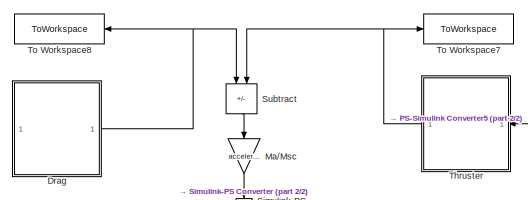
[diagram: root canvas - part 1/2, top left region]
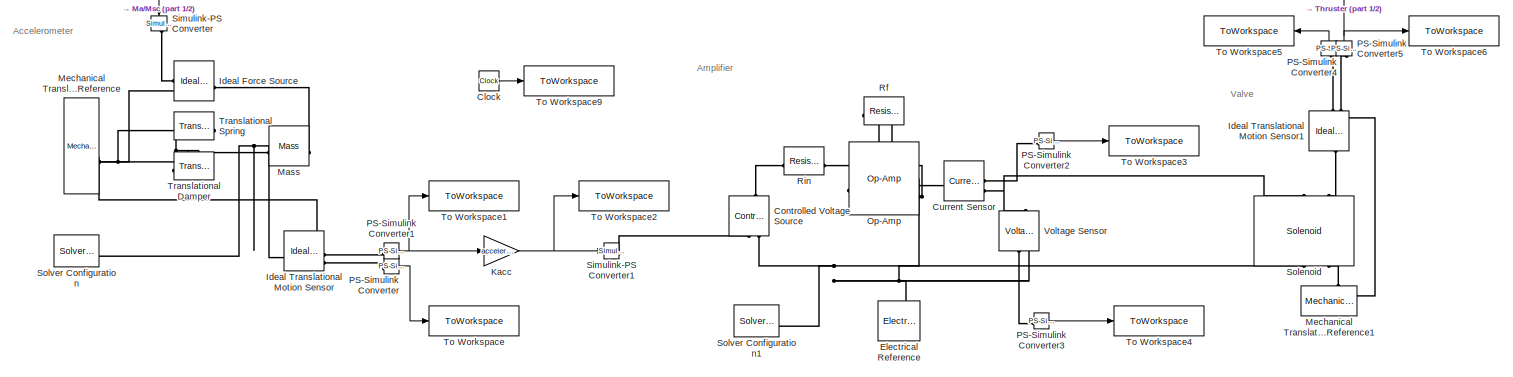
[diagram: root canvas - part 2/2, full width, bottom band]
MODEL slx_295a52b76f93
KIND model
CONFIG AbsTol = 1e-9
CONFIG EnableMultiTasking = off
CONFIG FixedStep = auto
CONFIG MaxStep = auto
CONFIG MinStep = auto
CONFIG RelTol = 1e-9
CONFIG SampleTimeConstraint = Unconstrained
CONFIG SolverName = ode15s
CONFIG StartTime = 0.0
CONFIG StopTime = Period
BLOCK [Clock] Clock
BLOCK [Reference] Controlled Voltage Source  REF=fl_lib/Electrical/Electrical Sources/Controlled Voltage
Source
  NameLocation = right
  SourceBlock = fl_lib/Electrical/Electrical Sources/Controlled Voltage\nSource
  SourceType = Controlled Voltage\nSource
BLOCK [Reference] Current Sensor  REF=fl_lib/Electrical/Electrical Sensors/Current Sensor
  SourceBlock = fl_lib/Electrical/Electrical Sensors/Current Sensor
  SourceType = Current Sensor
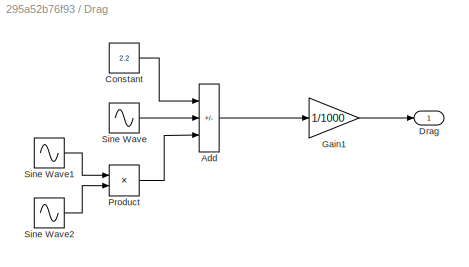
BLOCK [SubSystem] Drag
BLOCK [Sum] Drag/Add
  IconShape = rectangular
  Inputs = +-+
BLOCK [Constant] Drag/Constant
  Value = 2.2
BLOCK [Outport] Drag/Drag
BLOCK [Gain] Drag/Gain1
  Gain = 1/1000
BLOCK [Product] Drag/Product
BLOCK [Sin] Drag/Sine Wave
  Frequency = drag.omegaS
  Phase = pi/2
  SampleTime = 0
BLOCK [Sin] Drag/Sine Wave1
  Amplitude = 1.2
  Frequency = drag.omegaO
  SampleTime = 0
BLOCK [Sin] Drag/Sine Wave2
  Frequency = drag.omegaO
  Phase = pi/2
  SampleTime = 0
BLOCK [Reference] Electrical Reference  REF=fl_lib/Electrical/Electrical Elements/Electrical Reference
  NameLocation = right
  SourceBlock = fl_lib/Electrical/Electrical Elements/Electrical Reference
  SourceType = Electrical Reference
BLOCK [Reference] Ideal Force Source  REF=fl_lib/Mechanical/Mechanical Sources/Ideal Force Source
  SourceBlock = fl_lib/Mechanical/Mechanical Sources/Ideal Force Source
  SourceType = Ideal Force Source
BLOCK [Reference] Ideal Translational Motion Sensor  REF=fl_lib/Mechanical/Mechanical Sensors/Ideal Translational
Motion Sensor
  SourceBlock = fl_lib/Mechanical/Mechanical Sensors/Ideal Translational\nMotion Sensor
  SourceType = Ideal Translational\nMotion Sensor
BLOCK [Reference] Ideal Translational Motion Sensor1  REF=fl_lib/Mechanical/Mechanical Sensors/Ideal Translational
Motion Sensor
  NameLocation = right
  SourceBlock = fl_lib/Mechanical/Mechanical Sensors/Ideal Translational\nMotion Sensor
  SourceType = Ideal Translational\nMotion Sensor
BLOCK [Gain] Kacc
  Gain = accelerometer.Kacc
BLOCK [Gain] Ma//Msc
  Gain = accelerometer.Ma/accelerometer.Msc
  NameLocation = left
BLOCK [Reference] Mass  REF=fl_lib/Mechanical/Translational
Elements/Mass
  SourceBlock = fl_lib/Mechanical/Translational\nElements/Mass
  SourceType = Mass
BLOCK [Reference] Mechanical Translational Reference  REF=fl_lib/Mechanical/Translational
Elements/Mechanical
Translational
Reference
  SourceBlock = fl_lib/Mechanical/Translational\nElements/Mechanical\nTranslational\nReference
  SourceType = Mechanical\nTranslational\nReference
BLOCK [Reference] Mechanical Translational Reference1  REF=fl_lib/Mechanical/Translational
Elements/Mechanical
Translational
Reference
  NameLocation = right
  SourceBlock = fl_lib/Mechanical/Translational\nElements/Mechanical\nTranslational\nReference
  SourceType = Mechanical\nTranslational\nReference
BLOCK [Reference] Op-Amp  REF=fl_lib/Electrical/Electrical Elements/Op-Amp
  SourceBlock = fl_lib/Electrical/Electrical Elements/Op-Amp
  SourceType = Op-Amp
BLOCK [Reference] PS-Simulink Converter  REF=nesl_utility/PS-Simulink
Converter
  SourceBlock = nesl_utility/PS-Simulink\nConverter
  SourceType = PS-Simulink\nConverter
BLOCK [Reference] PS-Simulink Converter1  REF=nesl_utility/PS-Simulink
Converter
  SourceBlock = nesl_utility/PS-Simulink\nConverter
  SourceType = PS-Simulink\nConverter
BLOCK [Reference] PS-Simulink Converter2  REF=nesl_utility/PS-Simulink
Converter
  SourceBlock = nesl_utility/PS-Simulink\nConverter
  SourceType = PS-Simulink\nConverter
BLOCK [Reference] PS-Simulink Converter3  REF=nesl_utility/PS-Simulink
Converter
  SourceBlock = nesl_utility/PS-Simulink\nConverter
  SourceType = PS-Simulink\nConverter
BLOCK [Reference] PS-Simulink Converter4  REF=nesl_utility/PS-Simulink
Converter
  NameLocation = right
  SourceBlock = nesl_utility/PS-Simulink\nConverter
  SourceType = PS-Simulink\nConverter
BLOCK [Reference] PS-Simulink Converter5  REF=nesl_utility/PS-Simulink
Converter
  NameLocation = right
  SourceBlock = nesl_utility/PS-Simulink\nConverter
  SourceType = PS-Simulink\nConverter
BLOCK [Reference] Rf  REF=fl_lib/Electrical/Electrical Elements/Resistor
  NameLocation = top
  SourceBlock = fl_lib/Electrical/Electrical Elements/Resistor
  SourceType = Resistor
BLOCK [Reference] Rin  REF=fl_lib/Electrical/Electrical Elements/Resistor
  SourceBlock = fl_lib/Electrical/Electrical Elements/Resistor
  SourceType = Resistor
BLOCK [Reference] Simulink-PS Converter  REF=nesl_utility/Simulink-PS
Converter
  NameLocation = left
  SourceBlock = nesl_utility/Simulink-PS\nConverter
  SourceType = Simulink-PS\nConverter
BLOCK [Reference] Simulink-PS Converter1  REF=nesl_utility/Simulink-PS
Converter
  SourceBlock = nesl_utility/Simulink-PS\nConverter
  SourceType = Simulink-PS\nConverter
BLOCK [Reference] Solenoid  REF=ee_lib/Electromechanical/Mechatronic
Actuators/Solenoid
  NameLocation = right
  SourceBlock = ee_lib/Electromechanical/Mechatronic\nActuators/Solenoid
  SourceType = Solenoid
BLOCK [Reference] Solver Configuration  REF=nesl_utility/Solver
Configuration
  SourceBlock = nesl_utility/Solver\nConfiguration
  SourceType = Solver\nConfiguration
BLOCK [Reference] Solver Configuration1  REF=nesl_utility/Solver
Configuration
  SourceBlock = nesl_utility/Solver\nConfiguration
  SourceType = Solver\nConfiguration
BLOCK [Sum] Subtract
  IconShape = rectangular
  Inputs = -+
  NameLocation = left
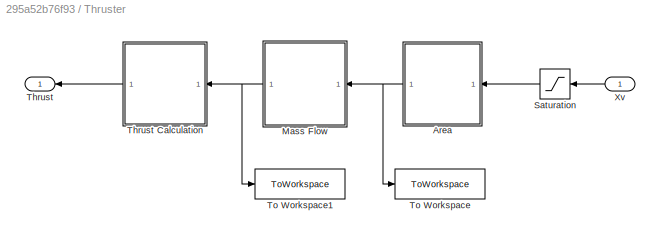
BLOCK [SubSystem] Thruster
  NameLocation = top
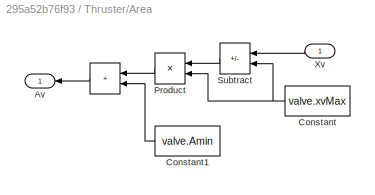
BLOCK [SubSystem] Thruster/Area
  NameLocation = top
BLOCK [Sum] Thruster/Area/ 
  IconShape = rectangular
  NameLocation = top
BLOCK [Outport] Thruster/Area/Av
BLOCK [Constant] Thruster/Area/Constant
  NameLocation = top
  Value = valve.xvMax
BLOCK [Constant] Thruster/Area/Constant1
  NameLocation = top
  Value = valve.Amin
BLOCK [Product] Thruster/Area/Product
  NameLocation = top
BLOCK [Sum] Thruster/Area/Subtract
  IconShape = rectangular
  Inputs = -+
  NameLocation = top
BLOCK [Inport] Thruster/Area/Xv
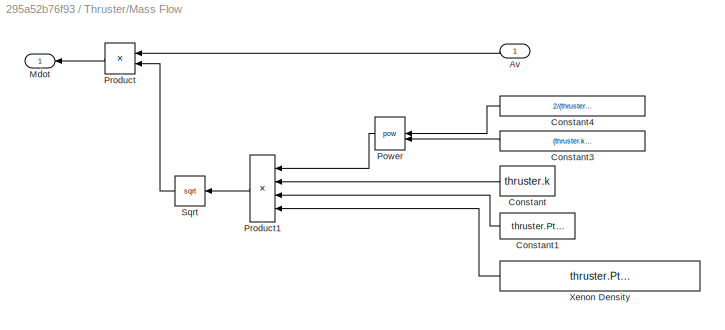
BLOCK [SubSystem] Thruster/Mass Flow
  NameLocation = top
BLOCK [Inport] Thruster/Mass Flow/Av
  NameLocation = top
BLOCK [Constant] Thruster/Mass Flow/Constant
  NameLocation = top
  Value = thruster.k
BLOCK [Constant] Thruster/Mass Flow/Constant1
  NameLocation = top
  Value = thruster.Ptank
BLOCK [Constant] Thruster/Mass Flow/Constant3
  NameLocation = top
  Value = (thruster.k + 1)/(thruster.k - 1)
BLOCK [Constant] Thruster/Mass Flow/Constant4
  NameLocation = top
  Value = 2/(thruster.k+1)
BLOCK [Outport] Thruster/Mass Flow/Mdot
  NameLocation = top
BLOCK [Math] Thruster/Mass Flow/Power
  NameLocation = top
  Operator = pow
BLOCK [Product] Thruster/Mass Flow/Product
  NameLocation = top
BLOCK [Product] Thruster/Mass Flow/Product1
  Inputs = 4
  NameLocation = top
BLOCK [Sqrt] Thruster/Mass Flow/Sqrt
  NameLocation = top
BLOCK [Constant] Thruster/Mass Flow/Xenon Density
  NameLocation = top
  Value = thruster.Ptank/(thruster.R*thruster.Ttank)
BLOCK [Saturate] Thruster/Saturation
  LowerLimit = 0
  NameLocation = top
  UpperLimit = valve.xvMax
BLOCK [Outport] Thruster/Thrust
  NameLocation = top
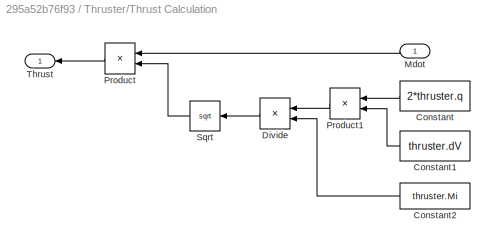
BLOCK [SubSystem] Thruster/Thrust Calculation
  NameLocation = top
BLOCK [Constant] Thruster/Thrust Calculation/Constant
  NameLocation = top
  Value = 2*thruster.q
BLOCK [Constant] Thruster/Thrust Calculation/Constant1
  NameLocation = top
  Value = thruster.dV
BLOCK [Constant] Thruster/Thrust Calculation/Constant2
  NameLocation = top
  Value = thruster.Mi
BLOCK [Product] Thruster/Thrust Calculation/Divide
  Inputs = */
  NameLocation = top
BLOCK [Inport] Thruster/Thrust Calculation/Mdot
  NameLocation = top
BLOCK [Product] Thruster/Thrust Calculation/Product
  NameLocation = top
BLOCK [Product] Thruster/Thrust Calculation/Product1
  NameLocation = top
BLOCK [Sqrt] Thruster/Thrust Calculation/Sqrt
  NameLocation = top
BLOCK [Outport] Thruster/Thrust Calculation/Thrust
  NameLocation = top
BLOCK [ToWorkspace] Thruster/To Workspace
  FixptAsFi = on
  MaxDataPoints = inf
  SampleTime = -1
  VariableName = Av
BLOCK [ToWorkspace] Thruster/To Workspace1
  FixptAsFi = on
  MaxDataPoints = inf
  SampleTime = -1
  VariableName = Mdot
BLOCK [Inport] Thruster/Xv
  NameLocation = top
BLOCK [ToWorkspace] To Workspace
  FixptAsFi = on
  MaxDataPoints = inf
  SampleTime = -1
  VariableName = xa
BLOCK [ToWorkspace] To Workspace1
  FixptAsFi = on
  MaxDataPoints = inf
  SampleTime = -1
  Save2DSignal = 2-D array (concatenate along first dimension)
  VariableName = va
BLOCK [ToWorkspace] To Workspace2
  FixptAsFi = on
  MaxDataPoints = inf
  SampleTime = -1
  Save2DSignal = 2-D array (concatenate along first dimension)
  VariableName = Vout
BLOCK [ToWorkspace] To Workspace3
  FixptAsFi = on
  MaxDataPoints = inf
  SampleTime = -1
  VariableName = i
BLOCK [ToWorkspace] To Workspace4
  FixptAsFi = on
  MaxDataPoints = inf
  SampleTime = -1
  VariableName = Vhat
BLOCK [ToWorkspace] To Workspace5
  FixptAsFi = on
  MaxDataPoints = inf
  NameLocation = top
  SampleTime = -1
  VariableName = vv
BLOCK [ToWorkspace] To Workspace6
  FixptAsFi = on
  MaxDataPoints = inf
  SampleTime = -1
  VariableName = xv
BLOCK [ToWorkspace] To Workspace7
  FixptAsFi = on
  MaxDataPoints = inf
  SampleTime = -1
  VariableName = T
BLOCK [ToWorkspace] To Workspace8
  FixptAsFi = on
  MaxDataPoints = inf
  NameLocation = top
  SampleTime = -1
  VariableName = D
BLOCK [ToWorkspace] To Workspace9
  FixptAsFi = on
  MaxDataPoints = inf
  SampleTime = -1
  VariableName = t
BLOCK [Reference] Translational Damper  REF=fl_lib/Mechanical/Translational
Elements/Translational Damper
  NameLocation = top
  SourceBlock = fl_lib/Mechanical/Translational\nElements/Translational Damper
  SourceType = Translational Damper
BLOCK [Reference] Translational Spring  REF=fl_lib/Mechanical/Translational
Elements/Translational Spring
  NameLocation = top
  SourceBlock = fl_lib/Mechanical/Translational\nElements/Translational Spring
  SourceType = Translational Spring
BLOCK [Reference] Voltage Sensor  REF=fl_lib/Electrical/Electrical Sensors/Voltage Sensor
  NameLocation = right
  SourceBlock = fl_lib/Electrical/Electrical Sensors/Voltage Sensor
  SourceType = Voltage Sensor
ANNOTATION (root): Accelerometer
ANNOTATION (root): Amplifier
ANNOTATION (root): Valve
LINE Clock:1 -> To Workspace9:1
LINE Drag/Add:1 -> Drag/Gain1:1
LINE Drag/Constant:1 -> Drag/Add:1
LINE Drag/Gain1:1 -> Drag/Drag:1
LINE Drag/Product:1 -> Drag/Add:3
LINE Drag/Sine Wave1:1 -> Drag/Product:1
LINE Drag/Sine Wave2:1 -> Drag/Product:2
LINE Drag/Sine Wave:1 -> Drag/Add:2
NET Drag:1 -> Subtract:1, To Workspace8:1
NET Kacc:1 -> Simulink-PS Converter1:1, To Workspace2:1
LINE Ma//Msc:1 -> Simulink-PS Converter:1
NET PS-Simulink Converter1:1 -> Kacc:1, To Workspace1:1
LINE PS-Simulink Converter2:1 -> To Workspace3:1
LINE PS-Simulink Converter3:1 -> To Workspace4:1
LINE PS-Simulink Converter4:1 -> To Workspace5:1
NET PS-Simulink Converter5:1 -> Thruster:1, To Workspace6:1
LINE PS-Simulink Converter:1 -> To Workspace:1
LINE Subtract:1 -> Ma//Msc:1
LINE Thruster/Area/ :1 -> Thruster/Area/Av:1
LINE Thruster/Area/Constant1:1 -> Thruster/Area/ :2
NET Thruster/Area/Constant:1 -> Thruster/Area/Product:2, Thruster/Area/Subtract:2
LINE Thruster/Area/Product:1 -> Thruster/Area/ :1
LINE Thruster/Area/Subtract:1 -> Thruster/Area/Product:1
LINE Thruster/Area/Xv:1 -> Thruster/Area/Subtract:1
NET Thruster/Area:1 -> Thruster/Mass Flow:1, Thruster/To Workspace:1
LINE Thruster/Mass Flow/Av:1 -> Thruster/Mass Flow/Product:1
LINE Thruster/Mass Flow/Constant1:1 -> Thruster/Mass Flow/Product1:3
LINE Thruster/Mass Flow/Constant3:1 -> Thruster/Mass Flow/Power:2
LINE Thruster/Mass Flow/Constant4:1 -> Thruster/Mass Flow/Power:1
LINE Thruster/Mass Flow/Constant:1 -> Thruster/Mass Flow/Product1:2
LINE Thruster/Mass Flow/Power:1 -> Thruster/Mass Flow/Product1:1
LINE Thruster/Mass Flow/Product1:1 -> Thruster/Mass Flow/Sqrt:1
LINE Thruster/Mass Flow/Product:1 -> Thruster/Mass Flow/Mdot:1
LINE Thruster/Mass Flow/Sqrt:1 -> Thruster/Mass Flow/Product:2
LINE Thruster/Mass Flow/Xenon Density:1 -> Thruster/Mass Flow/Product1:4
NET Thruster/Mass Flow:1 -> Thruster/Thrust Calculation:1, Thruster/To Workspace1:1
LINE Thruster/Saturation:1 -> Thruster/Area:1
LINE Thruster/Thrust Calculation/Constant1:1 -> Thruster/Thrust Calculation/Product1:2
LINE Thruster/Thrust Calculation/Constant2:1 -> Thruster/Thrust Calculation/Divide:2
LINE Thruster/Thrust Calculation/Constant:1 -> Thruster/Thrust Calculation/Product1:1
LINE Thruster/Thrust Calculation/Divide:1 -> Thruster/Thrust Calculation/Sqrt:1
LINE Thruster/Thrust Calculation/Mdot:1 -> Thruster/Thrust Calculation/Product:1
LINE Thruster/Thrust Calculation/Product1:1 -> Thruster/Thrust Calculation/Divide:1
LINE Thruster/Thrust Calculation/Product:1 -> Thruster/Thrust Calculation/Thrust:1
LINE Thruster/Thrust Calculation/Sqrt:1 -> Thruster/Thrust Calculation/Product:2
LINE Thruster/Thrust Calculation:1 -> Thruster/Thrust:1
LINE Thruster/Xv:1 -> Thruster/Saturation:1
NET Thruster:1 -> Subtract:2, To Workspace7:1
PLINE Controlled Voltage Source:LConn1 -- Rin:LConn1
PLINE Controlled Voltage Source:RConn1 -- Simulink-PS Converter1:RConn1
PNET net1: Controlled Voltage Source:RConn2 -- Electrical Reference:LConn1 -- Op-Amp:LConn1 -- Solenoid:RConn1 -- Solver Configuration1:RConn1 -- Voltage Sensor:RConn2
PNET net2: Current Sensor:LConn1 -- Op-Amp:RConn1 -- Rf:LConn1
PLINE Current Sensor:RConn1 -- PS-Simulink Converter2:LConn1
PNET net3: Current Sensor:RConn2 -- Solenoid:LConn1 -- Voltage Sensor:LConn1
PLINE Ideal Force Source:LConn1 -- Mass:LConn1
PLINE Ideal Force Source:RConn1 -- Simulink-PS Converter:RConn1
PNET net4: Ideal Force Source:RConn2 -- Ideal Translational Motion Sensor:RConn1 -- Mechanical Translational Reference:LConn1 -- Translational Damper:RConn1 -- Translational Spring:RConn1
PLINE Ideal Translational Motion Sensor1:LConn1 -- Solenoid:LConn2
PNET net5: Ideal Translational Motion Sensor1:RConn1 -- Mechanical Translational Reference1:LConn1 -- Solenoid:RConn2
PLINE Ideal Translational Motion Sensor1:RConn2 -- PS-Simulink Converter4:LConn1
PLINE Ideal Translational Motion Sensor1:RConn3 -- PS-Simulink Converter5:LConn1
PNET net6: Ideal Translational Motion Sensor:LConn1 -- Mass:RConn1 -- Solver Configuration:RConn1 -- Translational Damper:LConn1 -- Translational Spring:LConn1
PLINE Ideal Translational Motion Sensor:RConn2 -- PS-Simulink Converter1:LConn1
PLINE Ideal Translational Motion Sensor:RConn3 -- PS-Simulink Converter:LConn1
PNET net7: Op-Amp:LConn2 -- Rf:RConn1 -- Rin:RConn1
PLINE PS-Simulink Converter3:LConn1 -- Voltage Sensor:RConn1
note: NET lines group one-source signal fan-out (src -> all destinations, sorted); 1:1 wires keep LINE; PNET lines group multi-terminal physical nets as a canonical sorted terminal list (undirected conserving connections); 2-terminal nets keep the pairwise PLINE form
